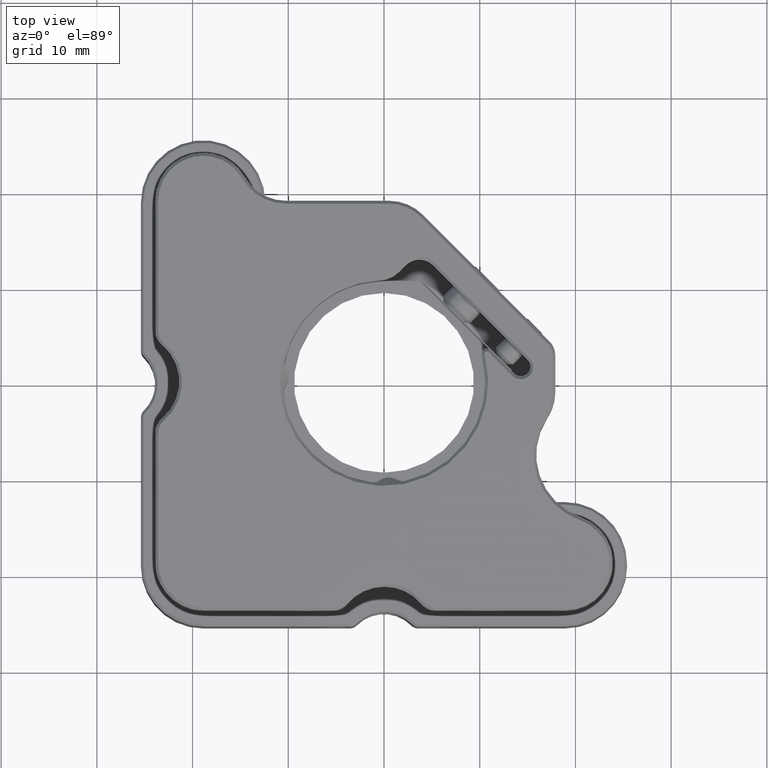
[diagram: clean part render]
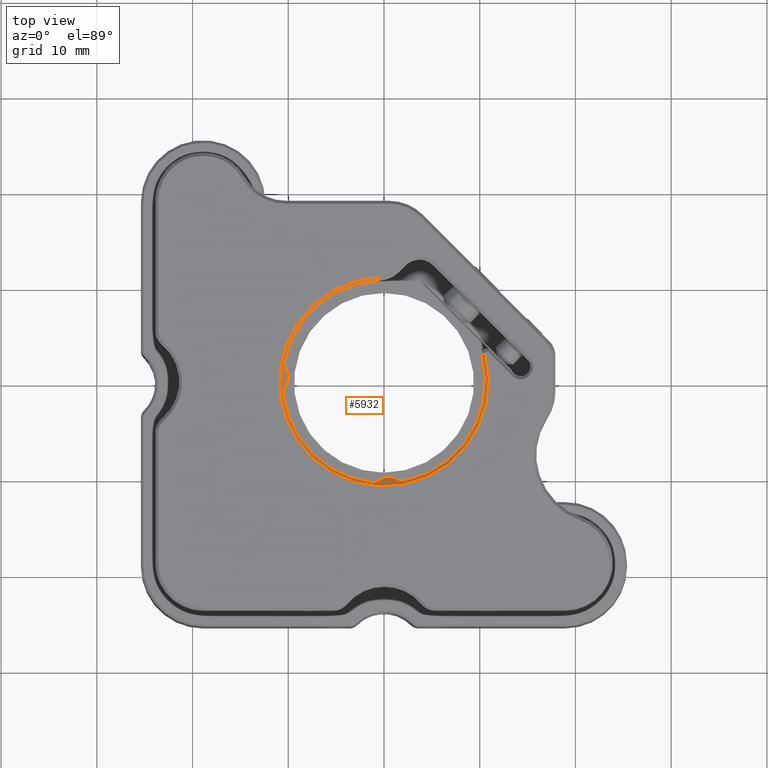
[diagram: same view with one face highlighted and labeled with its STEP entity id]
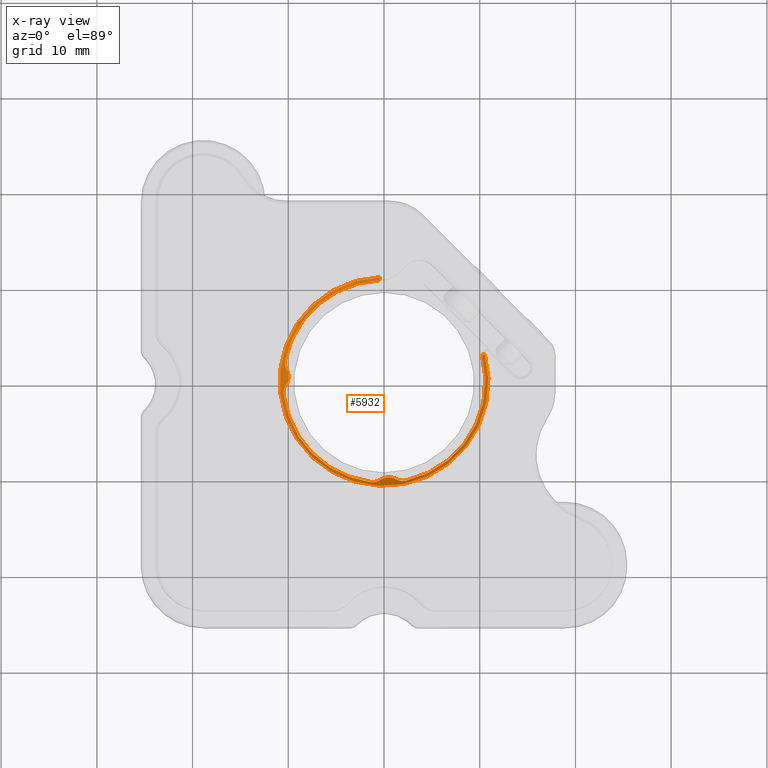
[diagram: x-ray of the same camera — body ghosted, the highlighted face saturated]
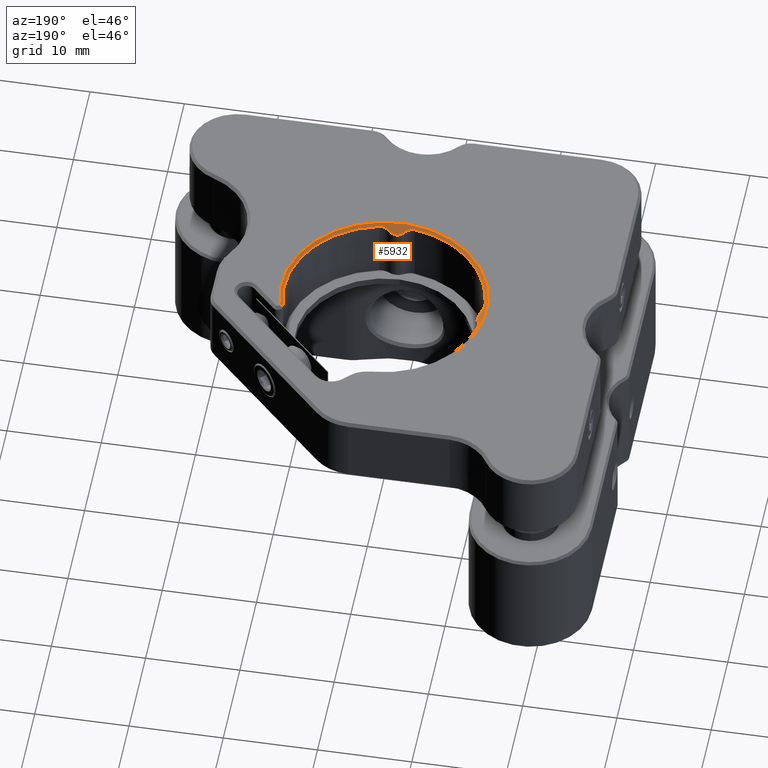
[diagram: same view with one face highlighted and labeled with its STEP entity id]
A machine part, top view. The second image highlights one B-rep face of the part: STEP entity #5932.
The next image is the same camera in x-ray: the body ghosted, the highlighted face saturated — about 0% of this face is hidden behind the body in this view.
A second angle (auxiliary view) of the same face is appended — the face is thin or edge-on in the first view.
In plain terms, the highlighted conical surface has half-angle 45 deg.
Its self-contained STEP definition (entity closure, byte-faithful):
#311 = CARTESIAN_POINT ( 'NONE',  ( -46.87959746511855741, -10.49627263042015812, 3.486186882587515079 ) ) ;
#573 = FACE_OUTER_BOUND ( 'NONE', #3445, .T. ) ;
#644 = CARTESIAN_POINT ( 'NONE',  ( -50.62928511596715708, 10.42281851192702824, 3.750000000000027534 ) ) ;
#738 = EDGE_CURVE ( 'NONE', #14619, #5374, #8711, .T. ) ;
#974 = CARTESIAN_POINT ( 'NONE',  ( -50.65548099591942588, 10.51932641769152887, 3.850000000000000089 ) ) ;
#1022 = CARTESIAN_POINT ( 'NONE',  ( -58.39122078895641010, -0.4313260942456197955, 3.549999999999999822 ) ) ;
#1209 = AXIS2_PLACEMENT_3D ( 'NONE', #6025, #21689, #15912 ) ;
#1585 = CARTESIAN_POINT ( 'NONE',  ( -37.41697286626265395, 1.927842184011475224, 3.510061741033712046 ) ) ;
#1651 = B_SPLINE_CURVE_WITH_KNOTS ( 'NONE', 3,
 ( #17225, #13057, #4133, #25999, #21402, #21673, #19521, #21822, #10888, #17648 ),
 .UNSPECIFIED., .F., .F.,
 ( 4, 2, 2, 2, 4 ),
 ( 2.797209735930772249E-07, 0.0002915575568927244402, 0.0005828353928118558229, 0.0008741132287309869887, 0.001165391064650118155 ),
 .UNSPECIFIED. ) ;
#1999 = B_SPLINE_CURVE_WITH_KNOTS ( 'NONE', 3,
 ( #26144, #4267, #24269, #8864, #24124, #10602, #14935, #23843, #28153, #12920 ),
 .UNSPECIFIED., .F., .F.,
 ( 4, 2, 2, 2, 4 ),
 ( 2.647933546748640455E-07, 0.0002915426131673082093, 0.0005828204329799415665, 0.0008740982527925749779, 0.001165376072605208389 ),
 .UNSPECIFIED. ) ;
#2041 = CARTESIAN_POINT ( 'NONE',  ( -37.81094545180861388, 0.6406468134595938446, 2.958614294213832707 ) ) ;
#2257 = DIRECTION ( 'NONE',  ( -0.000000000000000000, -0.000000000000000000, -1.000000000000000000 ) ) ;
#2291 = EDGE_CURVE ( 'NONE', #17399, #25363, #21982, .T. ) ;
#2602 = VERTEX_POINT ( 'NONE', #16746 ) ;
#2670 = CARTESIAN_POINT ( 'NONE',  ( -50.65548099591942588, 10.51932641769152887, 3.850000000000000089 ) ) ;
#2699 = B_SPLINE_CURVE_WITH_KNOTS ( 'NONE', 3,
 ( #3776, #6361, #16885, #25783, #8093, #28084, #19600, #10670 ),
 .UNSPECIFIED., .F., .F.,
 ( 4, 2, 2, 4 ),
 ( 0.0008242024900054752221, 0.001061984276624105107, 0.001299766063242734993, 0.001775329636479988909 ),
 .UNSPECIFIED. ) ;
#2759 = CARTESIAN_POINT ( 'NONE',  ( -47.31068784741292887, -10.35042043666582323, 3.311094920047689794 ) ) ;
#2995 = CARTESIAN_POINT ( 'NONE',  ( -48.08597626034610784, -10.00286289982780552, 2.956694364658187357 ) ) ;
#3445 = EDGE_LOOP ( 'NONE', ( #15769, #25137, #15147, #17841, #14622, #16672, #16171, #7666, #10189, #19664, #12567, #19353, #7455 ) ) ;
#3528 = VERTEX_POINT ( 'NONE', #13105 ) ;
#3550 = DIRECTION ( 'NONE',  ( -1.000000000000000000, 0.000000000000000000, 0.000000000000000000 ) ) ;
#3776 = CARTESIAN_POINT ( 'NONE',  ( -37.81094545180861388, 0.5016229547013876244, 2.951641683015140849 ) ) ;
#3915 = DIRECTION ( 'NONE',  ( -0.7065211359353797960, -0.02877298171167789326, 0.7071067811865474617 ) ) ;
#4020 = CARTESIAN_POINT ( 'NONE',  ( -37.61495722843761769, 1.242941567993177676, 3.210604270704531249 ) ) ;
#4133 = CARTESIAN_POINT ( 'NONE',  ( -37.45470011931710275, -0.4943099295281643824, 3.306810932027245187 ) ) ;
#4158 = CARTESIAN_POINT ( 'NONE',  ( -37.53161233004959740, 1.389548879709408880, 3.311095006880876657 ) ) ;
#4267 = CARTESIAN_POINT ( 'NONE',  ( -49.11628028525937140, -10.22673515284202317, 3.260873671336987911 ) ) ;
#4630 = CARTESIAN_POINT ( 'NONE',  ( -58.69097232071932524, -0.4435334365355904640, 3.850000000000000089 ) ) ;
#4746 = CONICAL_SURFACE ( 'NONE', #24497, 10.90000000000000036, 0.7853981633974500554 ) ;
#5143 = CARTESIAN_POINT ( 'NONE',  ( -48.53197620870292894, -10.00016031556803142, 2.976028949048072025 ) ) ;
#5238 = CARTESIAN_POINT ( 'NONE',  ( -47.79999999999998295, 0.000000000000000000, 3.550000000000001155 ) ) ;
#5374 = VERTEX_POINT ( 'NONE', #23471 ) ;
#5780 = AXIS2_PLACEMENT_3D ( 'NONE', #11023, #2257, #19794 ) ;
#5932 = ADVANCED_FACE ( 'NONE', ( #573 ), #4746, .F. ) ;
#6025 = CARTESIAN_POINT ( 'NONE',  ( -47.79999999999998295, 0.000000000000000000, 3.549999999999999378 ) ) ;
#6216 = EDGE_CURVE ( 'NONE', #25363, #21376, #15434, .T. ) ;
#6319 = CARTESIAN_POINT ( 'NONE',  ( -37.43359760953244120, 2.215263454745157734, 3.549999999999999378 ) ) ;
#6356 = CARTESIAN_POINT ( 'NONE',  ( -37.72243807038834262, 1.025902467759318260, 3.078902073513266835 ) ) ;
#6361 = CARTESIAN_POINT ( 'NONE',  ( -37.81094545180861388, 0.4213805836040296904, 2.947617202179115825 ) ) ;
#7056 = CARTESIAN_POINT ( 'NONE',  ( -46.49665785186306266, -10.52002803950189858, 3.550000000000000266 ) ) ;
#7112 = CARTESIAN_POINT ( 'NONE',  ( -50.57688991824840485, 10.22980363359581979, 3.549999999999999378 ) ) ;
#7330 = CARTESIAN_POINT ( 'NONE',  ( -37.81094545180861388, 0.5016229547013876244, 2.951641683015140849 ) ) ;
#7394 = DIRECTION ( 'NONE',  ( -1.000000000000000000, 0.000000000000000000, 0.000000000000000000 ) ) ;
#7455 = ORIENTED_EDGE ( 'NONE', *, *, #13227, .T. ) ;
#7666 = ORIENTED_EDGE ( 'NONE', *, *, #23811, .T. ) ;
#8093 = CARTESIAN_POINT ( 'NONE',  ( -37.76102052665316222, 0.1103856141478781333, 2.989325133819073610 ) ) ;
#8356 = CARTESIAN_POINT ( 'NONE',  ( -37.54538489558151326, -0.3505268324004190417, 3.210604270704533025 ) ) ;
#8433 = CARTESIAN_POINT ( 'NONE',  ( -50.57688991824840485, 10.22980363359581979, 3.549999999999999378 ) ) ;
#8536 = EDGE_CURVE ( 'NONE', #17399, #21722, #8957, .T. ) ;
#8711 = CIRCLE ( 'NONE', #9162, 10.59999999999999787 ) ;
#8784 = CARTESIAN_POINT ( 'NONE',  ( -47.14819660856817762, -10.42754994586594464, 3.396437756506415440 ) ) ;
#8864 = CARTESIAN_POINT ( 'NONE',  ( -49.35963731885115635, -10.32236127843342643, 3.389232332217103405 ) ) ;
#8929 = CARTESIAN_POINT ( 'NONE',  ( -47.44947316759956379, -10.25461510441846613, 3.210604270704529917 ) ) ;
#8957 = CIRCLE ( 'NONE', #5780, 10.90000000000000036 ) ;
#9126 = CARTESIAN_POINT ( 'NONE',  ( -50.60308920316883530, 10.32631061507844628, 3.650000000000100275 ) ) ;
#9145 = B_SPLINE_CURVE_WITH_KNOTS ( 'NONE', 3,
 ( #22980, #27434, #12055, #20386, #16509, #2995, #27153, #9303, #5143, #16222, #20682, #14353 ),
 .UNSPECIFIED., .F., .F.,
 ( 4, 2, 2, 2, 2, 4 ),
 ( 2.801341862489276824E-07, 0.0004440462349009095659, 0.0006659292852582390137, 0.0008878123356155685156, 0.001331578436330227736, 0.001775344537044886740 ),
 .UNSPECIFIED. ) ;
#9162 = AXIS2_PLACEMENT_3D ( 'NONE', #5238, #18343, #7394 ) ;
#9214 = CARTESIAN_POINT ( 'NONE',  ( -46.59321460333750764, -10.52322539609589036, 3.541774155488563114 ) ) ;
#9303 = CARTESIAN_POINT ( 'NONE',  ( -48.38324942068901180, -9.983929501584713151, 2.949848194684223657 ) ) ;
#10052 = VERTEX_POINT ( 'NONE', #1022 ) ;
#10189 = ORIENTED_EDGE ( 'NONE', *, *, #13289, .T. ) ;
#10209 = EDGE_CURVE ( 'NONE', #21376, #20407, #23371, .T. ) ;
#10602 = CARTESIAN_POINT ( 'NONE',  ( -49.63117321610246080, -10.37606358765638070, 3.486044397441576681 ) ) ;
#10670 = CARTESIAN_POINT ( 'NONE',  ( -37.54538489558151326, -0.3505268324004190417, 3.210604270704533025 ) ) ;
#10888 = CARTESIAN_POINT ( 'NONE',  ( -37.27994873146182897, -1.303167928413971666, 3.550000000000002931 ) ) ;
#11023 = CARTESIAN_POINT ( 'NONE',  ( -47.79999999999998295, 0.000000000000000000, 3.850000000000000089 ) ) ;
#11833 = VERTEX_POINT ( 'NONE', #8356 ) ;
#11866 = VERTEX_POINT ( 'NONE', #16274 ) ;
#12055 = CARTESIAN_POINT ( 'NONE',  ( -47.67419097509326775, -10.11925855256937368, 3.069158525027565254 ) ) ;
#12567 = ORIENTED_EDGE ( 'NONE', *, *, #14823, .T. ) ;
#12876 = VERTEX_POINT ( 'NONE', #7330 ) ;
#12920 = CARTESIAN_POINT ( 'NONE',  ( -50.11133603534290870, -10.34493720288940288, 3.549999999999999378 ) ) ;
#12946 = CARTESIAN_POINT ( 'NONE',  ( -37.61495722843761769, 1.242941567993177676, 3.210604270704531249 ) ) ;
#13057 = CARTESIAN_POINT ( 'NONE',  ( -37.49745933662530462, -0.4199526554609555040, 3.260873607772417859 ) ) ;
#13087 = CARTESIAN_POINT ( 'NONE',  ( -37.42388721515506944, 1.831710643329751642, 3.486186903883320642 ) ) ;
#13105 = CARTESIAN_POINT ( 'NONE',  ( -49.04294156799316085, -10.18504277156236171, 3.210604270704529473 ) ) ;
#13227 = EDGE_CURVE ( 'NONE', #3528, #2602, #1999, .T. ) ;
#13289 = EDGE_CURVE ( 'NONE', #11833, #14619, #1651, .T. ) ;
#14353 = CARTESIAN_POINT ( 'NONE',  ( -49.04294156799316085, -10.18504277156236171, 3.210604270704529473 ) ) ;
#14613 = EDGE_CURVE ( 'NONE', #10052, #21722, #28363, .T. ) ;
#14619 = VERTEX_POINT ( 'NONE', #26204 ) ;
#14622 = ORIENTED_EDGE ( 'NONE', *, *, #6216, .T. ) ;
#14701 = EDGE_CURVE ( 'NONE', #20407, #12876, #27679, .T. ) ;
#14823 = EDGE_CURVE ( 'NONE', #5374, #11866, #25286, .T. ) ;
#14935 = CARTESIAN_POINT ( 'NONE',  ( -49.72469011590389698, -10.38292003812531483, 3.509379667179775897 ) ) ;
#15147 = ORIENTED_EDGE ( 'NONE', *, *, #8536, .F. ) ;
#15421 = CARTESIAN_POINT ( 'NONE',  ( -46.39907998167870318, -10.50701780251022122, 3.550000000000000266 ) ) ;
#15434 = CIRCLE ( 'NONE', #1209, 10.59999999999999787 ) ;
#15769 = ORIENTED_EDGE ( 'NONE', *, *, #17505, .T. ) ;
#15912 = DIRECTION ( 'NONE',  ( -1.000000000000000000, 0.000000000000000000, 0.000000000000000000 ) ) ;
#16171 = ORIENTED_EDGE ( 'NONE', *, *, #14701, .T. ) ;
#16222 = CARTESIAN_POINT ( 'NONE',  ( -48.80531938766864641, -10.06913956447431424, 3.068324941415228935 ) ) ;
#16274 = CARTESIAN_POINT ( 'NONE',  ( -47.44947316759956379, -10.25461510441846613, 3.210604270704529917 ) ) ;
#16509 = CARTESIAN_POINT ( 'NONE',  ( -47.94347911373655080, -10.03063002095969480, 2.981401116838334975 ) ) ;
#16672 = ORIENTED_EDGE ( 'NONE', *, *, #10209, .T. ) ;
#16746 = CARTESIAN_POINT ( 'NONE',  ( -50.11133603534290870, -10.34493720288940288, 3.549999999999999378 ) ) ;
#16885 = CARTESIAN_POINT ( 'NONE',  ( -37.80455045244183765, 0.3424982224033399913, 2.951012305902421140 ) ) ;
#17225 = CARTESIAN_POINT ( 'NONE',  ( -37.54538489558151326, -0.3505268324004190417, 3.210604270704533025 ) ) ;
#17293 = CARTESIAN_POINT ( 'NONE',  ( -37.61495722843761769, 1.242941567993177676, 3.210604270704531249 ) ) ;
#17399 = VERTEX_POINT ( 'NONE', #974 ) ;
#17431 = CARTESIAN_POINT ( 'NONE',  ( -54.59436805329278286, -0.2766997585726617692, -0.2499999999999837352 ) ) ;
#17505 = EDGE_CURVE ( 'NONE', #2602, #10052, #22425, .T. ) ;
#17648 = CARTESIAN_POINT ( 'NONE',  ( -37.29298219748975640, -1.400920018321273997, 3.550000000000001155 ) ) ;
#17841 = ORIENTED_EDGE ( 'NONE', *, *, #2291, .T. ) ;
#18343 = DIRECTION ( 'NONE',  ( -0.000000000000000000, -0.000000000000000000, -1.000000000000000000 ) ) ;
#18427 = DIRECTION ( 'NONE',  ( 0.000000000000000000, 0.000000000000000000, 1.000000000000000000 ) ) ;
#18628 = CARTESIAN_POINT ( 'NONE',  ( -37.45506279711057829, 2.311336035342930639, 3.549999999999999378 ) ) ;
#19353 = ORIENTED_EDGE ( 'NONE', *, *, #26957, .T. ) ;
#19521 = CARTESIAN_POINT ( 'NONE',  ( -37.28884232969399193, -1.012434787142076686, 3.509379628890951341 ) ) ;
#19600 = CARTESIAN_POINT ( 'NONE',  ( -37.62365744005086299, -0.2371398226048406221, 3.128503842315466077 ) ) ;
#19664 = ORIENTED_EDGE ( 'NONE', *, *, #738, .T. ) ;
#19794 = DIRECTION ( 'NONE',  ( -1.000000000000000000, 0.000000000000000000, 0.000000000000000000 ) ) ;
#20386 = CARTESIAN_POINT ( 'NONE',  ( -47.87455596404245739, -10.04939598618654450, 2.999450492514104116 ) ) ;
#20407 = VERTEX_POINT ( 'NONE', #4020 ) ;
#20682 = CARTESIAN_POINT ( 'NONE',  ( -48.93117265951141093, -10.12150318263394055, 3.133993222023024217 ) ) ;
#21376 = VERTEX_POINT ( 'NONE', #18628 ) ;
#21402 = CARTESIAN_POINT ( 'NONE',  ( -37.34975969885601188, -0.7406450405802113002, 3.426087917971284202 ) ) ;
#21673 = CARTESIAN_POINT ( 'NONE',  ( -37.30382324548715900, -0.9198713387388598450, 3.486044342118292949 ) ) ;
#21689 = DIRECTION ( 'NONE',  ( -0.000000000000000000, -0.000000000000000000, -1.000000000000000000 ) ) ;
#21722 = VERTEX_POINT ( 'NONE', #4630 ) ;
#21741 = CARTESIAN_POINT ( 'NONE',  ( -37.79197745277188858, 0.7731457571324645839, 2.987091040929466867 ) ) ;
#21822 = CARTESIAN_POINT ( 'NONE',  ( -37.27675504134245443, -1.204088456816718278, 3.541484874678324513 ) ) ;
#21850 = CARTESIAN_POINT ( 'NONE',  ( -37.46893840577941148, 1.558144068761410761, 3.396437808076737674 ) ) ;
#21982 = B_SPLINE_CURVE_WITH_KNOTS ( 'NONE', 3,
 ( #2670, #644, #9126, #7112 ),
 .UNSPECIFIED., .F., .F.,
 ( 4, 4 ),
 ( 0.000000000000000000, 1.000000000000000000 ),
 .UNSPECIFIED. ) ;
#22425 = CIRCLE ( 'NONE', #27006, 10.59999999999999787 ) ;
#22980 = CARTESIAN_POINT ( 'NONE',  ( -47.44947316759956379, -10.25461510441846613, 3.210604270704529917 ) ) ;
#23252 = CARTESIAN_POINT ( 'NONE',  ( -47.79999999999998295, 0.000000000000000000, 3.549999999999999378 ) ) ;
#23371 = B_SPLINE_CURVE_WITH_KNOTS ( 'NONE', 3,
 ( #26027, #6319, #23868, #1585, #13087, #21850, #4158, #12946 ),
 .UNSPECIFIED., .F., .F.,
 ( 4, 2, 2, 4 ),
 ( 2.015928028754229708E-07, 0.0002907150503497179226, 0.0005812285078965603521, 0.001162255422990244886 ),
 .UNSPECIFIED. ) ;
#23471 = CARTESIAN_POINT ( 'NONE',  ( -46.39907998167870318, -10.50701780251022122, 3.550000000000000266 ) ) ;
#23811 = EDGE_CURVE ( 'NONE', #12876, #11833, #2699, .T. ) ;
#23843 = CARTESIAN_POINT ( 'NONE',  ( -49.91666778309226515, -10.37825760361127969, 3.541484871640206755 ) ) ;
#23868 = CARTESIAN_POINT ( 'NONE',  ( -37.42199693787924275, 2.119352821569936207, 3.541774165254272244 ) ) ;
#24124 = CARTESIAN_POINT ( 'NONE',  ( -49.44862512672265353, -10.34592252073377416, 3.426087926124328664 ) ) ;
#24269 = CARTESIAN_POINT ( 'NONE',  ( -49.19408136855604852, -10.26285100146161078, 3.306811010031443399 ) ) ;
#24497 = AXIS2_PLACEMENT_3D ( 'NONE', #26906, #18427, #24884 ) ;
#24758 = CARTESIAN_POINT ( 'NONE',  ( -37.81094545180861388, 0.5016229547013876244, 2.951641683015140849 ) ) ;
#24884 = DIRECTION ( 'NONE',  ( -1.000000000000000000, 0.000000000000000000, 0.000000000000000000 ) ) ;
#25137 = ORIENTED_EDGE ( 'NONE', *, *, #14613, .T. ) ;
#25286 = B_SPLINE_CURVE_WITH_KNOTS ( 'NONE', 3,
 ( #15421, #7056, #9214, #26920, #311, #8784, #2759, #8929 ),
 .UNSPECIFIED., .F., .F.,
 ( 4, 2, 2, 4 ),
 ( 1.984817417828238036E-07, 0.0002907119668426437356, 0.0005812254519435046396, 0.001162252422145206281 ),
 .UNSPECIFIED. ) ;
#25363 = VERTEX_POINT ( 'NONE', #8433 ) ;
#25537 = VECTOR ( 'NONE', #3915, 1000.000000000000114 ) ;
#25783 = CARTESIAN_POINT ( 'NONE',  ( -37.77974381581955043, 0.1872856450731821831, 2.971703466084924194 ) ) ;
#25999 = CARTESIAN_POINT ( 'NONE',  ( -37.38098710973409311, -0.6540492678121732073, 3.389232290083603161 ) ) ;
#26027 = CARTESIAN_POINT ( 'NONE',  ( -37.45506279711057829, 2.311336035342930639, 3.549999999999999378 ) ) ;
#26066 = CARTESIAN_POINT ( 'NONE',  ( -37.67383824195114528, 1.139367296870364754, 3.139610166575493189 ) ) ;
#26144 = CARTESIAN_POINT ( 'NONE',  ( -49.04294156799316085, -10.18504277156236171, 3.210604270704529473 ) ) ;
#26204 = CARTESIAN_POINT ( 'NONE',  ( -37.29298219748975640, -1.400920018321273997, 3.550000000000001155 ) ) ;
#26906 = CARTESIAN_POINT ( 'NONE',  ( -47.79999999999998295, 0.000000000000000000, 3.850000000000000089 ) ) ;
#26920 = CARTESIAN_POINT ( 'NONE',  ( -46.78443433923827399, -10.51153908999679309, 3.510061727191234215 ) ) ;
#26957 = EDGE_CURVE ( 'NONE', #11866, #3528, #9145, .T. ) ;
#27006 = AXIS2_PLACEMENT_3D ( 'NONE', #23252, #27703, #3550 ) ;
#27153 = CARTESIAN_POINT ( 'NONE',  ( -48.16065947298188377, -9.993847081553507650, 2.950076933667688639 ) ) ;
#27434 = CARTESIAN_POINT ( 'NONE',  ( -47.55508912202577676, -10.18170702169892294, 3.134130650677460661 ) ) ;
#27679 = B_SPLINE_CURVE_WITH_KNOTS ( 'NONE', 3,
 ( #17293, #26066, #6356, #21741, #2041, #24758 ),
 .UNSPECIFIED., .F., .F.,
 ( 4, 2, 4 ),
 ( 2.651844133110222033E-07, 0.0004122338372093930885, 0.0008242024900054752221 ),
 .UNSPECIFIED. ) ;
#27703 = DIRECTION ( 'NONE',  ( -0.000000000000000000, -0.000000000000000000, -1.000000000000000000 ) ) ;
#28084 = CARTESIAN_POINT ( 'NONE',  ( -37.69050689746294580, -0.1066103352251666914, 3.059017643846426715 ) ) ;
#28153 = CARTESIAN_POINT ( 'NONE',  ( -50.01509190078102307, -10.36644072021777951, 3.550000000000001155 ) ) ;
#28363 = LINE ( 'NONE', #17431, #25537 ) ;